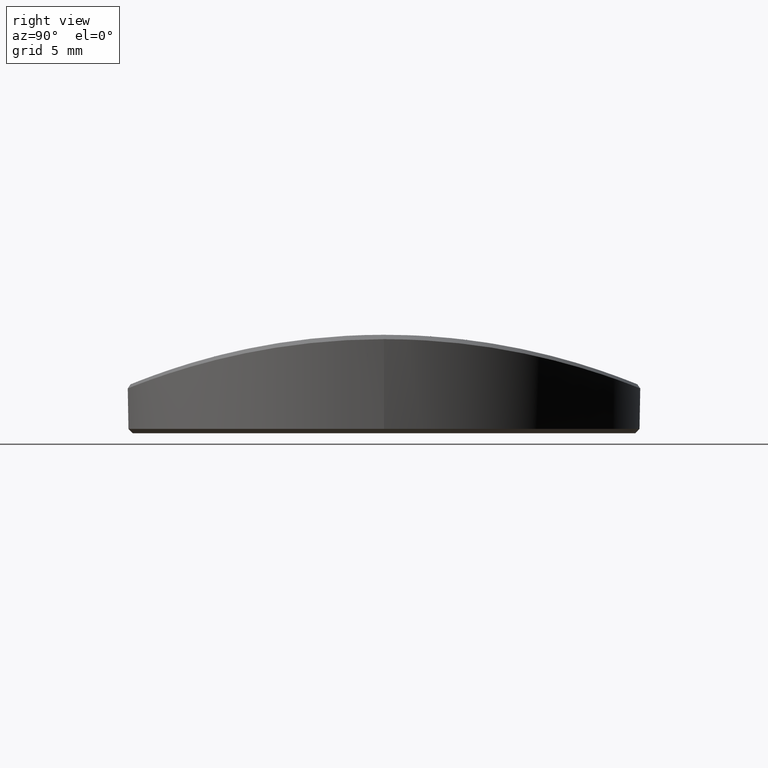
[diagram: clean part render]
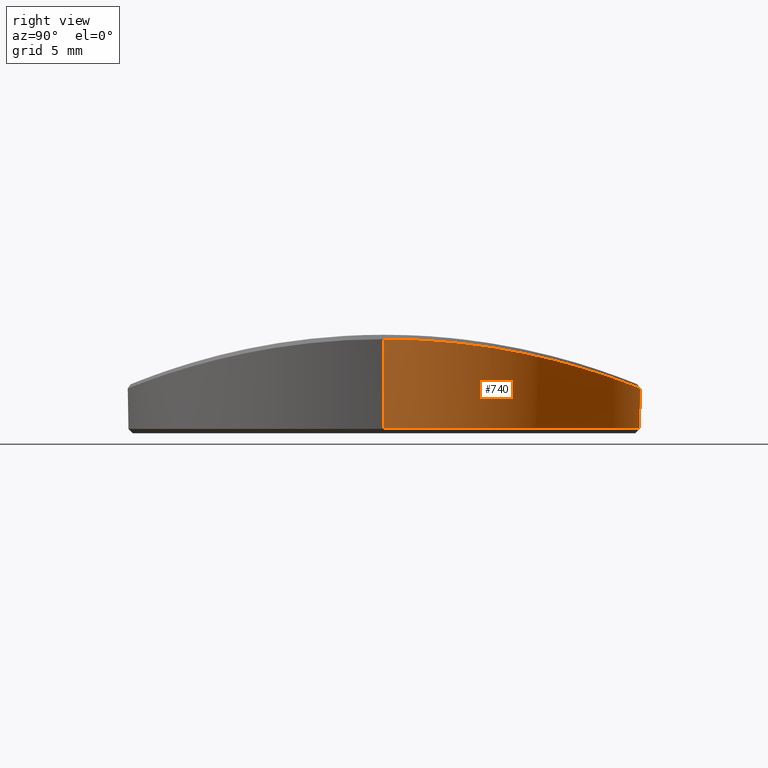
[diagram: same view with one face highlighted and labeled with its STEP entity id]
A machine part, right view. The second image highlights one B-rep face of the part: STEP entity #740.
In plain terms, the highlighted cylindrical surface (partial cylindrical patch) has radius 11.7 mm, axis along (-0, -0, -1).
Its self-contained STEP definition (entity closure, byte-faithful):
#8 = CARTESIAN_POINT ( 'NONE',  ( 7.888290646629014802, 8.640893199863754148, 3.089713225062541202 ) ) ;
#12 = CARTESIAN_POINT ( 'NONE',  ( -10.22789715247414222, 5.681878937188276524, 3.780000658494329535 ) ) ;
#23 = CARTESIAN_POINT ( 'NONE',  ( 8.558692350898153833, 7.977954808214100524, 3.270777279782347780 ) ) ;
#27 = CARTESIAN_POINT ( 'NONE',  ( -8.727299508287467589, 7.793260981205430760, 3.318466740201980958 ) ) ;
#36 = CARTESIAN_POINT ( 'NONE',  ( 8.287067342364345279, 8.259208618905056198, 3.195813196759891284 ) ) ;
#39 = CARTESIAN_POINT ( 'NONE',  ( -8.119463675674817082, 8.424390538232598757, 3.150581575840307735 ) ) ;
#49 = CARTESIAN_POINT ( 'NONE',  ( 9.731128417873589953, 6.495790785072700579, 3.619963922044569848 ) ) ;
#53 = CARTESIAN_POINT ( 'NONE',  ( -8.264760211419986291, 8.281530156905459350, 3.189750435192526101 ) ) ;
#59 = CARTESIAN_POINT ( 'NONE',  ( -11.62194358825001217, 1.352621623432518794, 4.266445778916218678 ) ) ;
#66 = CARTESIAN_POINT ( 'NONE',  ( -4.182335698067338292, 10.92769646260452276, 2.342848137403649389 ) ) ;
#70 = DIRECTION ( 'NONE',  ( 1.000000000000000000, 0.000000000000000000, 0.000000000000000000 ) ) ;
#71 = CARTESIAN_POINT ( 'NONE',  ( -11.59826320194621729, 1.542546181812076478, 4.257731255176000040 ) ) ;
#82 = CARTESIAN_POINT ( 'NONE',  ( -10.78650723820852697, 4.532314236401684404, 3.968408804558945846 ) ) ;
#90 = CARTESIAN_POINT ( 'NONE',  ( -7.289481702509195138, 9.151925025487830823, 2.939526628084299986 ) ) ;
#113 = CARTESIAN_POINT ( 'NONE',  ( -3.399530701162279289, 11.19525467731439861, 2.242537157926287605 ) ) ;
#135 = CARTESIAN_POINT ( 'NONE',  ( 4.046706682864055438, 10.98081936388993185, 2.323265368586188373 ) ) ;
#147 = CARTESIAN_POINT ( 'NONE',  ( 2.351780848111742817, 11.46130526961223417, 2.140069903650192451 ) ) ;
#151 = CARTESIAN_POINT ( 'NONE',  ( 10.92781677955933617, 4.182003673530689802, 4.017426979878241156 ) ) ;
#160 = CARTESIAN_POINT ( 'NONE',  ( -0.7712829572750949936, 11.67494702199874901, 2.055771076492588723 ) ) ;
#162 = CARTESIAN_POINT ( 'NONE',  ( 11.69999999999999929, 0.3837674314343382242, 4.295274424586986051 ) ) ;
#173 = CARTESIAN_POINT ( 'NONE',  ( 3.231731580760927258, 11.24651709920020259, 2.223072521589024575 ) ) ;
#187 = CARTESIAN_POINT ( 'NONE',  ( 9.070950892027010326, 7.389722817263182364, 3.418376554316377103 ) ) ;
#189 = CARTESIAN_POINT ( 'NONE',  ( -9.377146465452256052, 6.997090697776377155, 3.510283679214278418 ) ) ;
#202 = CARTESIAN_POINT ( 'NONE',  ( 7.705201902673864289, 8.805054421272275889, 3.042554764437622072 ) ) ;
#206 = CARTESIAN_POINT ( 'NONE',  ( -9.336864139835633125, 7.050807286892255554, 3.498030426395176917 ) ) ;
#218 = CARTESIAN_POINT ( 'NONE',  ( 8.237463622058125878, 8.308818114982093661, 3.182332959306657827 ) ) ;
#221 = CARTESIAN_POINT ( 'NONE',  ( -9.701161992759407937, 6.540495754203384138, 3.610535273379416488 ) ) ;
#232 = CARTESIAN_POINT ( 'NONE',  ( 8.897363447054106089, 7.598863748479625535, 3.367402907586792615 ) ) ;
#235 = CARTESIAN_POINT ( 'NONE',  ( -8.235820022287461128, 8.310334853639337993, 3.181903113797276195 ) ) ;
#236 = VECTOR ( 'NONE', #2411, 1000.000000000000000 ) ;
#244 = CARTESIAN_POINT ( 'NONE',  ( 9.055285162147521660, 7.408911123352520001, 3.413748980420182821 ) ) ;
#248 = CARTESIAN_POINT ( 'NONE',  ( -9.443859579952111005, 6.907486992467366527, 3.530623421876835977 ) ) ;
#262 = CARTESIAN_POINT ( 'NONE',  ( -5.223822586643953159, 10.46987224570798425, 2.508042035191483166 ) ) ;
#267 = CARTESIAN_POINT ( 'NONE',  ( -11.45211503329184310, 2.396104126714131866, 4.204303442348403586 ) ) ;
#276 = CARTESIAN_POINT ( 'NONE',  ( -6.699788234501516726, 9.592648077453397093, 2.802441508754319521 ) ) ;
#281 = CARTESIAN_POINT ( 'NONE',  ( -10.97822070774722647, 4.053837622278138930, 4.034981919730275202 ) ) ;
#298 = CARTESIAN_POINT ( 'NONE',  ( 9.252037217329810659, 7.162790418133734960, 3.472307408370613135 ) ) ;
#301 = CARTESIAN_POINT ( 'NONE',  ( -5.094378599599732382, 10.53310627816805400, 2.485675871236978640 ) ) ;
#313 = CARTESIAN_POINT ( 'NONE',  ( -6.957467455710446558, 9.406582931082155596, 2.861111615733229474 ) ) ;
#316 = ORIENTED_EDGE ( 'NONE', *, *, #2488, .T. ) ;
#325 = CARTESIAN_POINT ( 'NONE',  ( 4.544383523361996247, 10.78142424203564609, 2.396445635487109538 ) ) ;
#338 = CARTESIAN_POINT ( 'NONE',  ( -0.9632668784840604514, 11.66067675083552224, 2.061455783097421612 ) ) ;
#352 = CARTESIAN_POINT ( 'NONE',  ( 0.7694461830074101893, 11.67627939397484838, 2.055241632753324055 ) ) ;
#364 = CARTESIAN_POINT ( 'NONE',  ( 5.364290747282063343, 10.39973929316928469, 2.532736856190833663 ) ) ;
#366 = CARTESIAN_POINT ( 'NONE',  ( 11.24417432423319596, 3.234332605270536121, 4.129288160338224323 ) ) ;
#386 = CARTESIAN_POINT ( 'NONE',  ( 6.782593683837508713, 9.534255462411291404, 2.821018222263933506 ) ) ;
#389 = CARTESIAN_POINT ( 'NONE',  ( -9.931498048038626791, 6.188013056245800669, 3.683513969638861685 ) ) ;
#401 = CARTESIAN_POINT ( 'NONE',  ( 7.486134403854664221, 8.991583219828571671, 2.987646509165397202 ) ) ;
#403 = CARTESIAN_POINT ( 'NONE',  ( -7.835432036570371572, 8.688846299831704201, 3.076014544982754284 ) ) ;
#405 = CARTESIAN_POINT ( 'NONE',  ( 11.62413761059384498, 1.344020682375672404, 4.267251603589326869 ) ) ;
#415 = CARTESIAN_POINT ( 'NONE',  ( 6.991019029902708404, 9.381674086412560953, 2.868882907920283554 ) ) ;
#419 = CARTESIAN_POINT ( 'NONE',  ( -9.288093968267583378, 7.115129804381266965, 3.483248281273598312 ) ) ;
#428 = CARTESIAN_POINT ( 'NONE',  ( 8.728471444357319697, 7.791334653167223401, 3.318865723925298106 ) ) ;
#430 = CARTESIAN_POINT ( 'NONE',  ( -8.345649881431395301, 8.200780018474791433, 3.211711048682770020 ) ) ;
#440 = CARTESIAN_POINT ( 'NONE',  ( 8.786345493476865443, 7.726215512156376697, 3.335413026244156143 ) ) ;
#442 = CARTESIAN_POINT ( 'NONE',  ( -8.981824676047303058, 7.497845323258884420, 3.392141032453855232 ) ) ;
#458 = CARTESIAN_POINT ( 'NONE',  ( -11.63238196714287476, 1.259829471362655218, 4.270292976724938683 ) ) ;
#471 = CARTESIAN_POINT ( 'NONE',  ( -11.08796515293942164, 3.736694886988290332, 4.073699730601195057 ) ) ;
#477 = CARTESIAN_POINT ( 'NONE',  ( 9.335575194384766462, 7.053015110477391048, 3.497602625824830724 ) ) ;
#480 = CARTESIAN_POINT ( 'NONE',  ( -6.837555101403382629, 9.494316987976700872, 2.833585260152656105 ) ) ;
#485 = EDGE_CURVE ( 'NONE', #702, #562, #1047, .T. ) ;
#492 = VECTOR ( 'NONE', #1225, 1000.000000000000000 ) ;
#494 = CARTESIAN_POINT ( 'NONE',  ( -7.786025549482752162, 8.733213446266795188, 3.063278770526340455 ) ) ;
#506 = CARTESIAN_POINT ( 'NONE',  ( -7.047756127015710526, 9.339527444700770786, 2.882029272980853207 ) ) ;
#551 = VERTEX_POINT ( 'NONE', #1820 ) ;
#559 = CARTESIAN_POINT ( 'NONE',  ( 2.488376748805919192, 11.43241927790962720, 2.151331667034600326 ) ) ;
#562 = VERTEX_POINT ( 'NONE', #1835 ) ;
#572 = CARTESIAN_POINT ( 'NONE',  ( 7.782345387564510553, 8.737117156087478520, 3.062241971016135267 ) ) ;
#586 = CARTESIAN_POINT ( 'NONE',  ( 8.117485607408990944, 8.425967219062304281, 3.150097490152650170 ) ) ;
#588 = EDGE_CURVE ( 'NONE', #551, #702, #1420, .T. ) ;
#590 = CARTESIAN_POINT ( 'NONE',  ( -7.992885011478165325, 8.544296991056096857, 3.117063662435846982 ) ) ;
#591 = CARTESIAN_POINT ( 'NONE',  ( 11.48031664042088273, 2.257114473503484486, 4.214568905575816871 ) ) ;
#601 = CARTESIAN_POINT ( 'NONE',  ( 7.016352649934343155, 9.362740932705044372, 2.874774659814939959 ) ) ;
#604 = CARTESIAN_POINT ( 'NONE',  ( -9.663488172272414189, 6.596023912201297357, 3.598721271261297705 ) ) ;
#611 = CARTESIAN_POINT ( 'NONE',  ( 10.33222518791430922, 5.489602043491360384, 3.814526166179541100 ) ) ;
#616 = CARTESIAN_POINT ( 'NONE',  ( 7.351012865045847278, 9.102919007720883471, 2.954385077532136084 ) ) ;
#618 = CARTESIAN_POINT ( 'NONE',  ( -8.561750288657137276, 7.974307789433776605, 3.271678078437108894 ) ) ;
#625 = CARTESIAN_POINT ( 'NONE',  ( 10.86562974075178545, 4.339610491343868226, 3.995796746064399940 ) ) ;
#630 = CARTESIAN_POINT ( 'NONE',  ( 8.186558997960322159, 8.358876606402397158, 3.168609153702558245 ) ) ;
#633 = CARTESIAN_POINT ( 'NONE',  ( -8.057853015136414498, 8.482983999992354640, 3.134235365373405191 ) ) ;
#638 = LINE ( 'NONE', #2384, #492 ) ;
#645 = CARTESIAN_POINT ( 'NONE',  ( -7.882561239677256637, 8.646188231982481653, 3.088213469282461876 ) ) ;
#657 = CARTESIAN_POINT ( 'NONE',  ( 9.395564998295457215, 6.972336993408942085, 3.515900340936506829 ) ) ;
#660 = CARTESIAN_POINT ( 'NONE',  ( -6.500303723576315917, 9.728112830390799104, 2.758753685410222811 ) ) ;
#674 = CARTESIAN_POINT ( 'NONE',  ( -6.584825209059849804, 9.671517579863003533, 2.777092555255673112 ) ) ;
#684 = CARTESIAN_POINT ( 'NONE',  ( 9.723465072304399825, 6.507254146982383247, 3.617550946736648232 ) ) ;
#687 = CARTESIAN_POINT ( 'NONE',  ( -6.467377055756238668, 9.750035657898179053, 2.751636516903076313 ) ) ;
#702 = VERTEX_POINT ( 'NONE', #1078 ) ;
#705 = DIRECTION ( 'NONE',  ( -0.000000000000000000, -0.000000000000000000, -1.000000000000000000 ) ) ;
#709 = CARTESIAN_POINT ( 'NONE',  ( 0.3823702731432714330, 11.69535552640118148, 2.047624797793404561 ) ) ;
#719 = CARTESIAN_POINT ( 'NONE',  ( 5.189100074375526894, 10.48809000226845534, 2.501690443500789840 ) ) ;
#739 = CARTESIAN_POINT ( 'NONE',  ( -0.4832994759773461824, 11.69277972538598398, 2.048658400212035158 ) ) ;
#740 = ADVANCED_FACE ( 'NONE', ( #2248 ), #2027, .T. ) ;
#742 = CARTESIAN_POINT ( 'NONE',  ( 11.58851933058215877, 1.631622620038725158, 4.254129218143469338 ) ) ;
#752 = CARTESIAN_POINT ( 'NONE',  ( 5.579892289424539520, 10.28372136769711531, 2.572847410964628878 ) ) ;
#763 = CARTESIAN_POINT ( 'NONE',  ( 5.937503340781243644, 10.08191776697556818, 2.641763308603989557 ) ) ;
#778 = CARTESIAN_POINT ( 'NONE',  ( 8.294429351776116732, 8.251819560152233279, 3.197816829312889908 ) ) ;
#781 = CARTESIAN_POINT ( 'NONE',  ( -8.634869084628061131, 7.894884757748693360, 3.292286630032081884 ) ) ;
#792 = CARTESIAN_POINT ( 'NONE',  ( 5.816617050002602873, 10.15241776418823605, 2.617899153032184678 ) ) ;
#796 = CARTESIAN_POINT ( 'NONE',  ( -10.28233688822979808, 5.582443479208843762, 3.797985230074126584 ) ) ;
#806 = CARTESIAN_POINT ( 'NONE',  ( 8.672320163145117888, 7.853717998962112645, 3.302893497662578781 ) ) ;
#809 = CARTESIAN_POINT ( 'NONE',  ( -9.095020847111431550, 7.360760516400455700, 3.425440865034901972 ) ) ;
#816 = CARTESIAN_POINT ( 'NONE',  ( 10.81978912014045946, 4.452275399906049813, 3.979911227753946790 ) ) ;
#820 = CARTESIAN_POINT ( 'NONE',  ( 8.311459118258182954, 8.234681446766465740, 3.202457203369714289 ) ) ;
#822 = CARTESIAN_POINT ( 'NONE',  ( -8.059597575289441096, 8.481327168717816889, 3.134697907842443954 ) ) ;
#832 = CARTESIAN_POINT ( 'NONE',  ( 10.22337831683760534, 5.692561001804513410, 3.778423078523266199 ) ) ;
#836 = CARTESIAN_POINT ( 'NONE',  ( -8.027198369518551146, 8.512016289777241340, 3.126118925080149324 ) ) ;
#848 = CARTESIAN_POINT ( 'NONE',  ( -6.435677687976785855, 9.771037510618999278, 2.744807184570351222 ) ) ;
#851 = AXIS2_PLACEMENT_3D ( 'NONE', #1269, #705, #909 ) ;
#854 = CARTESIAN_POINT ( 'NONE',  ( -11.55916624259112346, 1.827649423247464266, 4.243361112733620821 ) ) ;
#869 = CARTESIAN_POINT ( 'NONE',  ( -10.76016656102558500, 4.594491173794096106, 3.959326751692843427 ) ) ;
#874 = CARTESIAN_POINT ( 'NONE',  ( 9.148018884825201980, 7.294374143616679795, 3.441224359389729148 ) ) ;
#878 = CARTESIAN_POINT ( 'NONE',  ( -7.357316604374801727, 9.097307248231011556, 2.956007571332038619 ) ) ;
#886 = CARTESIAN_POINT ( 'NONE',  ( 9.907608800580051778, 6.224650174724928320, 3.675929073634226274 ) ) ;
#889 = CARTESIAN_POINT ( 'NONE',  ( -4.408732202248322629, 10.83760494235667515, 2.375940137836157096 ) ) ;
#901 = CARTESIAN_POINT ( 'NONE',  ( -3.374532102881677709, 11.20281831666507699, 2.239662521693415176 ) ) ;
#909 = DIRECTION ( 'NONE',  ( -1.000000000000000000, 0.000000000000000000, 0.000000000000000000 ) ) ;
#914 = CARTESIAN_POINT ( 'NONE',  ( 4.586788474389987158, 10.76345213141959967, 2.402980588930803130 ) ) ;
#924 = CARTESIAN_POINT ( 'NONE',  ( 1.537914669028665804, 11.59888197293524925, 2.085995682718381428 ) ) ;
#937 = AXIS2_PLACEMENT_3D ( 'NONE', #1834, #1454, #70 ) ;
#939 = CARTESIAN_POINT ( 'NONE',  ( 4.524887916371143959, 10.78962468826590815, 2.393460013607228820 ) ) ;
#941 = CARTESIAN_POINT ( 'NONE',  ( 11.13426867111492946, 3.598986799721983321, 4.090085178319680992 ) ) ;
#962 = CARTESIAN_POINT ( 'NONE',  ( 11.20229783282766789, 3.376490569540501419, 4.114327198330813395 ) ) ;
#972 = CARTESIAN_POINT ( 'NONE',  ( 9.094326961138229137, 7.360997140539494055, 3.425289844411543161 ) ) ;
#975 = CARTESIAN_POINT ( 'NONE',  ( -9.016965979542716170, 7.455497622398087998, 3.402460308560034008 ) ) ;
#982 = CARTESIAN_POINT ( 'NONE',  ( 10.35527056077423325, 5.446005833896792048, 3.822191088181160268 ) ) ;
#987 = CARTESIAN_POINT ( 'NONE',  ( 7.877672841068599219, 8.650566032350914369, 3.086955717179424852 ) ) ;
#990 = CARTESIAN_POINT ( 'NONE',  ( -8.651314722244887179, 7.876850715812970805, 3.296939866504068117 ) ) ;
#1000 = CARTESIAN_POINT ( 'NONE',  ( 8.344928143751509708, 8.200820132911635696, 3.211598877215992243 ) ) ;
#1004 = CARTESIAN_POINT ( 'NONE',  ( -10.39742838591952179, 5.368667229132905838, 3.836130496686570801 ) ) ;
#1013 = CARTESIAN_POINT ( 'NONE',  ( 8.078578338067089248, 8.463251541685835377, 3.139737309116536590 ) ) ;
#1016 = CARTESIAN_POINT ( 'NONE',  ( -8.214727845210614277, 8.331194587206317337, 3.176200836085775858 ) ) ;
#1024 = CARTESIAN_POINT ( 'NONE',  ( 8.677592169877867079, 7.847893656447949340, 3.304389701779191224 ) ) ;
#1027 = CARTESIAN_POINT ( 'NONE',  ( -9.187257361966505442, 7.245699713511440265, 3.452871345410047699 ) ) ;
#1038 = CARTESIAN_POINT ( 'NONE',  ( 9.587437384763310533, 6.707224857515496019, 3.574922668014618665 ) ) ;
#1047 = LINE ( 'NONE', #1224, #236 ) ;
#1061 = CARTESIAN_POINT ( 'NONE',  ( -11.43229362724746778, 2.488958847028710064, 4.197100769159336942 ) ) ;
#1067 = CARTESIAN_POINT ( 'NONE',  ( 9.418122947786784493, 6.941837694292556371, 3.522792475213720742 ) ) ;
#1078 = CARTESIAN_POINT ( 'NONE',  ( 11.70000000000246310, 8.453462766638964437E-14, 4.295275040493859997 ) ) ;
#1079 = CARTESIAN_POINT ( 'NONE',  ( 9.813919465418949883, 6.370348209154132135, 3.646122160694682091 ) ) ;
#1083 = CARTESIAN_POINT ( 'NONE',  ( -4.836866990563454927, 10.65508340880395899, 2.442253526191352719 ) ) ;
#1093 = CARTESIAN_POINT ( 'NONE',  ( -4.340730204948978432, 10.86518469969954381, 2.365839735869393667 ) ) ;
#1115 = CARTESIAN_POINT ( 'NONE',  ( 2.627076446689397660, 11.40193892070913684, 2.163192953730781021 ) ) ;
#1128 = CARTESIAN_POINT ( 'NONE',  ( -1.629560647813907304, 11.58876480204659387, 2.090027933597502940 ) ) ;
#1140 = CARTESIAN_POINT ( 'NONE',  ( 5.551900518519165217, 10.29886195823405970, 2.567619401073086394 ) ) ;
#1141 = EDGE_LOOP ( 'NONE', ( #2321, #1608, #316, #2550 ) ) ;
#1152 = CARTESIAN_POINT ( 'NONE',  ( -3.256705444130330029, 11.23779729513646508, 2.226345415686146190 ) ) ;
#1161 = CARTESIAN_POINT ( 'NONE',  ( 10.61594687361659872, 4.925037449684218416, 3.909770724750731397 ) ) ;
#1167 = CARTESIAN_POINT ( 'NONE',  ( 7.446055910751425699, 9.024759139873825831, 2.977754862033024086 ) ) ;
#1170 = CARTESIAN_POINT ( 'NONE',  ( -7.845414895411231271, 8.679833543373510096, 3.078595072856778359 ) ) ;
#1181 = CARTESIAN_POINT ( 'NONE',  ( 7.457954986541329490, 9.014937272360819875, 2.980686922608707157 ) ) ;
#1184 = CARTESIAN_POINT ( 'NONE',  ( -8.265176454172772580, 8.281114567700441853, 3.189863446815755399 ) ) ;
#1195 = CARTESIAN_POINT ( 'NONE',  ( 7.870723268288233321, 8.656889586046448315, 3.085151981541256916 ) ) ;
#1198 = CARTESIAN_POINT ( 'NONE',  ( -10.29789035968787125, 5.553702088985064123, 3.803135132399837914 ) ) ;
#1207 = CARTESIAN_POINT ( 'NONE',  ( 7.106068648704995105, 9.295020809795433436, 2.895766016050675074 ) ) ;
#1208 = CARTESIAN_POINT ( 'NONE',  ( -9.022784491461093737, 7.448457517448177079, 3.404171451364632617 ) ) ;
#1216 = CARTESIAN_POINT ( 'NONE',  ( 6.526934525640118778, 9.710267075187799080, 2.764534772386619821 ) ) ;
#1219 = CARTESIAN_POINT ( 'NONE',  ( -10.14932440777193712, 5.822037067565466906, 3.754167907332774057 ) ) ;
#1224 = CARTESIAN_POINT ( 'NONE',  ( 11.69999999999999929, 1.432836755002403087E-15, 7.000000000000000000 ) ) ;
#1225 = DIRECTION ( 'NONE',  ( -0.000000000000000000, -0.000000000000000000, -1.000000000000000000 ) ) ;
#1236 = CARTESIAN_POINT ( 'NONE',  ( -11.50922868342457051, 2.113125821748798039, 4.225095899795110022 ) ) ;
#1243 = CARTESIAN_POINT ( 'NONE',  ( -6.937378708671489314, 9.421408200957413825, 2.856475606924349542 ) ) ;
#1249 = CARTESIAN_POINT ( 'NONE',  ( -11.17442337136596642, 3.467657068555176192, 4.104394302570731234 ) ) ;
#1255 = CARTESIAN_POINT ( 'NONE',  ( 9.403547977733474283, 6.961568491654293922, 3.518337605339639129 ) ) ;
#1258 = CARTESIAN_POINT ( 'NONE',  ( -5.375886280529923233, 10.39201940787512690, 2.535282128143858671 ) ) ;
#1269 = CARTESIAN_POINT ( 'NONE',  ( 0.000000000000000000, 0.000000000000000000, 7.000000000000000000 ) ) ;
#1272 = CARTESIAN_POINT ( 'NONE',  ( -5.685148787027410222, 10.22744592554330190, 2.592334736085621927 ) ) ;
#1282 = CARTESIAN_POINT ( 'NONE',  ( -5.506731545934306027, 10.32308387187384469, 2.559238010885691139 ) ) ;
#1301 = CARTESIAN_POINT ( 'NONE',  ( 1.347084599039075625, 11.62259040121123732, 2.076597458200188040 ) ) ;
#1312 = CARTESIAN_POINT ( 'NONE',  ( -3.091916923348374091, 11.28480265676585859, 2.208385678395416107 ) ) ;
#1322 = CARTESIAN_POINT ( 'NONE',  ( 4.650503397936870620, 10.73622688365983713, 2.412866654305128034 ) ) ;
#1334 = CARTESIAN_POINT ( 'NONE',  ( 0.1874078887678114758, 11.70006600274061626, 2.045734530615458180 ) ) ;
#1343 = CARTESIAN_POINT ( 'NONE',  ( 10.46759620037999206, 5.228388959122686863, 3.859718141166181837 ) ) ;
#1350 = CARTESIAN_POINT ( 'NONE',  ( 8.278376992674498780, 8.267918493938578806, 3.193449559078681332 ) ) ;
#1365 = CARTESIAN_POINT ( 'NONE',  ( 8.460944477674143371, 8.081130054981334965, 3.243566890539766323 ) ) ;
#1367 = CARTESIAN_POINT ( 'NONE',  ( -10.73282786100292441, 4.658344240524481705, 3.949913495053368973 ) ) ;
#1368 = CARTESIAN_POINT ( 'NONE',  ( 11.04524853589422762, 3.867348809727248149, 4.058536299903130917 ) ) ;
#1378 = CARTESIAN_POINT ( 'NONE',  ( 7.435211903603990535, 9.033696090761337061, 2.975085173248879666 ) ) ;
#1381 = CARTESIAN_POINT ( 'NONE',  ( -8.653465949759025833, 7.874488475414853639, 3.297548884017059923 ) ) ;
#1388 = CARTESIAN_POINT ( 'NONE',  ( 10.73025274759930170, 4.667510786904911058, 3.948968158241360715 ) ) ;
#1394 = CARTESIAN_POINT ( 'NONE',  ( 8.686146456544696193, 7.838424615003810381, 3.306819359449450157 ) ) ;
#1398 = CARTESIAN_POINT ( 'NONE',  ( -8.264398504722093364, 8.281890946948026411, 3.189652264577813146 ) ) ;
#1410 = CARTESIAN_POINT ( 'NONE',  ( 6.181719891725502514, 9.935410726669999804, 2.690931119082611733 ) ) ;
#1413 = CARTESIAN_POINT ( 'NONE',  ( -8.052672125621386456, 8.487902237591429255, 3.132862029098794299 ) ) ;
#1416 = CARTESIAN_POINT ( 'NONE',  ( -11.16087035001376115, 3.511013306036624204, 4.099572114971202552 ) ) ;
#1420 = B_SPLINE_CURVE_WITH_KNOTS ( 'NONE', 3,
 ( #1430, #2219, #1654, #458, #59, #71, #854, #1236, #2022, #267, #1061, #1455, #1847, #1642, #1249, #1416, #2037, #471, #281, #2424, #82, #2244, #869, #1367, #2200, #1997, #1004, #1198, #2549, #796, #1775, #12, #1219, #1580, #389, #1787, #221, #2366, #604, #1968, #1607, #248, #189, #1982, #1801, #206, #419, #1027, #809, #1208, #975, #1759, #442, #2158, #2008, #27, #1381, #990, #2172, #781, #1595, #618, #2378, #1565, #430, #53, #1184, #1398, #2187, #2405, #2351, #235, #1016, #2393, #39, #822, #633, #1413, #1814, #836, #590, #1621, #645, #2141, #1170, #403, #1950, #494, #1650, #2253, #1675, #2458, #1856, #2032, #1424, #2469, #878, #90, #2419, #506, #1662, #313, #1243, #2433, #480, #276, #674, #660, #1449, #687, #848, #1463, #1474, #1842, #2264, #1272, #2225, #1282, #2057, #2239, #1258, #262, #301, #1083, #2214, #1829, #1867, #889, #1093, #66, #1636, #1877, #113, #901, #1686, #1152, #1312, #1921, #2503, #1521, #2077, #1889, #2290, #1128, #1509, #2100, #338, #160, #739, #1742, #1334, #709, #352, #1727, #2124, #1301, #924, #1908, #2089, #147, #1697, #559, #1115, #1933, #173, #1705, #2309, #1898, #2516, #1486, #135, #2277, #939, #325, #914, #1322, #2113, #2481, #719, #364, #1140, #1498, #752, #1534, #2318, #792, #763, #1410, #2375, #1216, #1756, #2532, #1546, #2333, #386, #1563, #415, #1772, #601, #2155, #1207, #2546, #616, #1378, #1577, #1167, #1181, #401, #1964, #1604, #202, #572, #2169, #1195, #987, #8, #2348, #1994, #2390, #1013, #2363, #2185, #586, #1979, #630, #218, #1590, #1350, #2138, #36, #778, #820, #1000, #1785, #1365, #23, #1947, #806, #1024, #1394, #2197, #428, #440, #232, #1797, #2004, #244, #187, #972, #874, #298, #477, #657, #1255, #1067, #2442, #1811, #1038, #1825, #684, #49, #2028, #2249, #1079, #886, #1671, #2455, #832, #2401, #611, #982, #1739, #1343, #1161, #1388, #2179, #816, #2385, #625, #151, #1368, #941, #962, #1566, #366, #2352, #2127, #2506, #591, #1936, #2115, #2520, #742, #405, #1732, #162, #2159 ),
 .UNSPECIFIED., .F., .F.,
 ( 4, 2, 2, 1, 2, 2, 1, 1, 2, 2, 1, 1, 2, 2, 1, 1, 1, 2, 2, 1, 1, 1, 2, 2, 2, 1, 1, 2, 2, 1, 1, 1, 2, 2, 1, 1, 1, 2, 2, 1, 1, 1, 2, 2, 2, 1, 1, 1, 1, 2, 2, 2, 1, 1, 1, 1, 2, 2, 1, 1, 1, 2, 2, 2, 1, 1, 1, 1, 2, 2, 1, 1, 1, 2, 2, 1, 1, 1, 2, 2, 2, 1, 1, 1, 2, 2, 2, 1, 1, 1, 2, 2, 1, 1, 1, 2, 2, 1, 1, 2, 2, 1, 2, 2, 2, 2, 1, 2, 2, 1, 1, 2, 2, 1, 1, 1, 2, 2, 1, 1, 2, 2, 2, 1, 1, 1, 2, 2, 2, 1, 1, 1, 2, 2, 1, 1, 1, 2, 2, 1, 1, 1, 2, 2, 2, 1, 1, 1, 2, 2, 1, 1, 2, 2, 2, 1, 1, 1, 1, 2, 2, 2, 1, 1, 1, 1, 2, 2, 1, 1, 1, 2, 2, 1, 1, 1, 2, 2, 1, 1, 1, 2, 2, 2, 1, 1, 1, 2, 2, 1, 1, 1, 2, 2, 1, 1, 2, 2, 1, 1, 2, 4 ),
 ( 0.000000000000000000, 0.01562476195956391360, 0.01953095244945489764, 0.02343714293934588341, 0.03124952391912787578, 0.03320261916407337560, 0.03515571440901885808, 0.03906190489890984385, 0.04687428587869183622, 0.04882738112363733951, 0.05078047636858284281, 0.05468666685847386327, 0.06249904783825590421, 0.06347559546072865932, 0.06445214308320142138, 0.06640523832814695937, 0.07031142881803802147, 0.07812380979782020118, 0.07861208360905660997, 0.07910035742029300487, 0.08007690504276579468, 0.08203000028771138818, 0.08593619077760261682, 0.09374857175738512960, 0.09472511937985796104, 0.09570166700233079249, 0.09765476224727645538, 0.1015609527371678228, 0.1020492265484042455, 0.1025375003596406820, 0.1035140479821135551, 0.1054671432270593567, 0.1093733337169510017, 0.1098616075281875076, 0.1103498813394239858, 0.1113264289618969838, 0.1132795242068429659, 0.1171857146967349578, 0.1174298516023531552, 0.1176739885079713527, 0.1181622623192077198, 0.1191388099416804264, 0.1210919051866259089, 0.1249980956765168044, 0.1250591299029213121, 0.1251201641293258338, 0.1252422325821348770, 0.1254863694877531022, 0.1259746432989894138, 0.1269511909214620926, 0.1289042861664075057, 0.1290263546192166044, 0.1291484230720257032, 0.1293925599776439561, 0.1298808337888805176, 0.1308573814113535017, 0.1328104766562996086, 0.1330546135619178338, 0.1332987504675360868, 0.1337870242787725095, 0.1347635719012454658, 0.1367166671461913230, 0.1406228576360830651, 0.1408669945417012903, 0.1411111314473194878, 0.1415994052585559104, 0.1425759528810287835, 0.1445290481259745852, 0.1484352386158662440, 0.1489235124271026667, 0.1494117862383391171, 0.1503883338608119902, 0.1523414291057577363, 0.1562476195956491731, 0.1567358934068856235, 0.1572241672181220462, 0.1582007148405948915, 0.1601538100855406654, 0.1640600005754322410, 0.1718723815552153367, 0.1723606553664517316, 0.1728489291776881265, 0.1738254768001609718, 0.1757785720451065792, 0.1796847625349978494, 0.1874971435147803900, 0.1884736911372532631, 0.1894502387597261084, 0.1914033340046718545, 0.1953095244945633469, 0.2031219054743463037, 0.2040984530968191490, 0.2050750007192920221, 0.2070280959642376850, 0.2109342864541290663, 0.2187466674339118011, 0.2206997626788574640, 0.2226528579238031824, 0.2265590484136945637, 0.2343714293934773263, 0.2382776198833686798, 0.2421838103732600611, 0.2499961913530428237, 0.2578085723328256140, 0.2656209533126084321, 0.2695271438024997579, 0.2734333342923911392, 0.2812457152721739018, 0.2831988105171195924, 0.2851519057620652275, 0.2890580962519566088, 0.2968704772317393159, 0.2978470248542121612, 0.2988235724766850621, 0.3007766677216307527, 0.3046828582115221895, 0.3124952391913050076, 0.3134717868137779084, 0.3144483344362507538, 0.3164014296811964444, 0.3203076201710879367, 0.3281200011508709768, 0.3286082749621073718, 0.3290965487733438222, 0.3300730963958166120, 0.3320261916407623026, 0.3359323821306535729, 0.3437447631104361134, 0.3442330369216725083, 0.3447213107329089588, 0.3456978583553817486, 0.3476509536003274392, 0.3515571440902187095, 0.3520454179014551599, 0.3525336917126916103, 0.3535102393351644556, 0.3554633345801102018, 0.3593695250700015831, 0.3596136619756197805, 0.3598577988812379780, 0.3603460726924743174, 0.3613226203149472182, 0.3632757155598929644, 0.3671819060497845677, 0.3674260429554027096, 0.3676701798610209071, 0.3681584536722573575, 0.3691350012947302583, 0.3710880965396760600, 0.3713322334452943130, 0.3715763703509125104, 0.3720646441621489608, 0.3730411917846219727, 0.3749942870295678854, 0.3751163554823769841, 0.3752384239351860828, 0.3754825608408042248, 0.3759708346520405087, 0.3769473822745129654, 0.3789004775194578234, 0.3828066680093475949, 0.3830508049149657368, 0.3832949418205838787, 0.3837832156318201626, 0.3847597632542927859, 0.3867128584992378104, 0.3906190489891280815, 0.3911073228003644209, 0.3915955966116007603, 0.3925721442340732725, 0.3945252394790184636, 0.3984314299689087902, 0.3989197037801450740, 0.3994079775913812469, 0.4003845252138538147, 0.4023376204587988947, 0.4062438109486891658, 0.4067320847599253941, 0.4072203585711616780, 0.4081969061936341903, 0.4101500014385792148, 0.4140561919284692638, 0.4218685729082494174, 0.4228451205307219296, 0.4238216681531944974, 0.4257747633981394664, 0.4296809538880294599, 0.4374933348678093914, 0.4384698824902818481, 0.4394464301127543604, 0.4413995253576992739, 0.4453057158475893229, 0.4531180968273692544, 0.4550711920723142234, 0.4570242873172592479, 0.4609304778071492414, 0.4687428587869292285, 0.4706959540318741975, 0.4726490492768192220, 0.4765552397667091600, 0.4843676207464892025, 0.4999923827060492321 ),
 .UNSPECIFIED. ) ;
#1424 = CARTESIAN_POINT ( 'NONE',  ( -7.406330932246119048, 9.057389395059779247, 2.967993434327031999 ) ) ;
#1430 = CARTESIAN_POINT ( 'NONE',  ( -11.70000000000000107, 1.358640847395897744E-15, 4.295275040937299060 ) ) ;
#1449 = CARTESIAN_POINT ( 'NONE',  ( -6.488529950371995092, 9.735971466409184316, 2.756204510327770141 ) ) ;
#1454 = DIRECTION ( 'NONE',  ( -0.000000000000000000, -0.000000000000000000, 1.000000000000000000 ) ) ;
#1455 = CARTESIAN_POINT ( 'NONE',  ( -11.40165364904247092, 2.628341798400268381, 4.185978528355175143 ) ) ;
#1463 = CARTESIAN_POINT ( 'NONE',  ( -6.361926399798802478, 9.819384410197228519, 2.729030680424212818 ) ) ;
#1474 = CARTESIAN_POINT ( 'NONE',  ( -6.215311623218756409, 9.913477510555445349, 2.698112090652802220 ) ) ;
#1486 = CARTESIAN_POINT ( 'NONE',  ( 3.731542135786707792, 11.08968876213938870, 2.282463255418412551 ) ) ;
#1498 = CARTESIAN_POINT ( 'NONE',  ( 5.560375901929067943, 10.29428690873030305, 2.569199936966935383 ) ) ;
#1509 = CARTESIAN_POINT ( 'NONE',  ( -1.344581331138693381, 11.62404041562084878, 2.076024949126794361 ) ) ;
#1521 = CARTESIAN_POINT ( 'NONE',  ( -2.250334470292728373, 11.48164802623850633, 2.132120400349485134 ) ) ;
#1534 = CARTESIAN_POINT ( 'NONE',  ( 5.609212029787946641, 10.26779475606049274, 2.578341114138275270 ) ) ;
#1546 = CARTESIAN_POINT ( 'NONE',  ( 6.582010972015210903, 9.673057233354176887, 2.776555221988197264 ) ) ;
#1563 = CARTESIAN_POINT ( 'NONE',  ( 6.900886448241053017, 9.448689517419735395, 2.847987080347959665 ) ) ;
#1565 = CARTESIAN_POINT ( 'NONE',  ( -8.417802077099530322, 8.126472518016282010, 3.231579434935846429 ) ) ;
#1566 = CARTESIAN_POINT ( 'NONE',  ( 11.21690712865343720, 3.327665563488126033, 4.119541187770512813 ) ) ;
#1577 = CARTESIAN_POINT ( 'NONE',  ( 7.438162858805464239, 9.031265661282441570, 2.975811403733055194 ) ) ;
#1580 = CARTESIAN_POINT ( 'NONE',  ( -10.07838109552009875, 5.943506899052020565, 3.731050119206955173 ) ) ;
#1590 = CARTESIAN_POINT ( 'NONE',  ( 8.262012160522086646, 8.284300212113455686, 3.189001000503969063 ) ) ;
#1595 = CARTESIAN_POINT ( 'NONE',  ( -8.611227996183078659, 7.920698595053378810, 3.285608997232431161 ) ) ;
#1604 = CARTESIAN_POINT ( 'NONE',  ( 7.596636788669862028, 8.898504898670418939, 3.015183714663118852 ) ) ;
#1607 = CARTESIAN_POINT ( 'NONE',  ( -9.529556784292717353, 6.789211215570089664, 3.556981352028580456 ) ) ;
#1608 = ORIENTED_EDGE ( 'NONE', *, *, #485, .T. ) ;
#1621 = CARTESIAN_POINT ( 'NONE',  ( -7.929007411714159126, 8.603768621319110466, 3.100292556214366613 ) ) ;
#1636 = CARTESIAN_POINT ( 'NONE',  ( -3.866779584933361935, 11.04545812223803125, 2.299168964965628614 ) ) ;
#1637 = CIRCLE ( 'NONE', #937, 11.69999999999999929 ) ;
#1642 = CARTESIAN_POINT ( 'NONE',  ( -11.24579349454203658, 3.234232570519013361, 4.129826376023137513 ) ) ;
#1650 = CARTESIAN_POINT ( 'NONE',  ( -7.718458717449084183, 8.793175919237059546, 3.045968658889418812 ) ) ;
#1654 = CARTESIAN_POINT ( 'NONE',  ( -11.68077234829941702, 0.7754003933446691477, 4.288137892875268697 ) ) ;
#1662 = CARTESIAN_POINT ( 'NONE',  ( -6.968827250130698481, 9.398168232275452283, 2.863739198833669786 ) ) ;
#1671 = CARTESIAN_POINT ( 'NONE',  ( 9.983974516166632895, 6.100771293800975492, 3.700491769830324351 ) ) ;
#1675 = CARTESIAN_POINT ( 'NONE',  ( -7.555463347145694897, 8.933863123181998489, 3.004815772482326341 ) ) ;
#1686 = CARTESIAN_POINT ( 'NONE',  ( -3.327393593760436641, 11.21690942380242184, 2.234301181250870627 ) ) ;
#1697 = CARTESIAN_POINT ( 'NONE',  ( 2.396024062705008006, 11.45213072230911067, 2.143650293472918911 ) ) ;
#1705 = CARTESIAN_POINT ( 'NONE',  ( 3.442113397634544381, 11.18223827296376172, 2.247479365529636564 ) ) ;
#1727 = CARTESIAN_POINT ( 'NONE',  ( 0.9631134428186770569, 11.66191428863570856, 2.060967963634653177 ) ) ;
#1729 = EDGE_CURVE ( 'NONE', #551, #2142, #638, .T. ) ;
#1732 = CARTESIAN_POINT ( 'NONE',  ( 11.68096441316757250, 0.7700243613136674714, 4.288211014079373662 ) ) ;
#1739 = CARTESIAN_POINT ( 'NONE',  ( 10.38955648687769440, 5.380644919667373571, 3.833611288245872828 ) ) ;
#1742 = CARTESIAN_POINT ( 'NONE',  ( -0.1955604170154211507, 11.69993257709445089, 2.045788874811565794 ) ) ;
#1756 = CARTESIAN_POINT ( 'NONE',  ( 6.535101445069974702, 9.704770827769918284, 2.766312679578120992 ) ) ;
#1759 = CARTESIAN_POINT ( 'NONE',  ( -9.002973393228259624, 7.472388530760309955, 3.398348805016983665 ) ) ;
#1772 = CARTESIAN_POINT ( 'NONE',  ( 6.998642017317028063, 9.375986998425061003, 2.870653870072632063 ) ) ;
#1775 = CARTESIAN_POINT ( 'NONE',  ( -10.26615723660585466, 5.612210855277112387, 3.792632533662134264 ) ) ;
#1785 = CARTESIAN_POINT ( 'NONE',  ( 8.409524063837000796, 8.134779270078036362, 3.229325927839077792 ) ) ;
#1787 = CARTESIAN_POINT ( 'NONE',  ( -9.826912986152706253, 6.353110991896868676, 3.650089105504855436 ) ) ;
#1797 = CARTESIAN_POINT ( 'NONE',  ( 8.984646874588699816, 7.494904596687366194, 3.392928994517484753 ) ) ;
#1801 = CARTESIAN_POINT ( 'NONE',  ( -9.357417267218464119, 7.023451517278348710, 3.504278562273668296 ) ) ;
#1811 = CARTESIAN_POINT ( 'NONE',  ( 9.489978505880662496, 6.843567111298658467, 3.544826031506179476 ) ) ;
#1814 = CARTESIAN_POINT ( 'NONE',  ( -8.044942390013851252, 8.495233338350082875, 3.130813983785690535 ) ) ;
#1820 = CARTESIAN_POINT ( 'NONE',  ( -11.70000000000000107, 1.358640847395897744E-15, 4.295275040937299060 ) ) ;
#1825 = CARTESIAN_POINT ( 'NONE',  ( 9.666409716675525843, 6.592329945998900875, 3.599601262337126517 ) ) ;
#1829 = CARTESIAN_POINT ( 'NONE',  ( -4.478527357876484594, 10.80894571795839632, 2.386415129784694500 ) ) ;
#1834 = CARTESIAN_POINT ( 'NONE',  ( 0.000000000000000000, 0.000000000000000000, 0.2000000000000040079 ) ) ;
#1835 = CARTESIAN_POINT ( 'NONE',  ( 11.69999999999999929, 1.432836755002403087E-15, 0.2000000000000040079 ) ) ;
#1842 = CARTESIAN_POINT ( 'NONE',  ( -6.091272398260007215, 9.989770112338241859, 2.672698016884501815 ) ) ;
#1847 = CARTESIAN_POINT ( 'NONE',  ( -11.32374917903142020, 2.954186371101781283, 4.157799016001544778 ) ) ;
#1856 = CARTESIAN_POINT ( 'NONE',  ( -7.422139575658716737, 9.044438594908855933, 2.971872165642594155 ) ) ;
#1867 = CARTESIAN_POINT ( 'NONE',  ( -4.454091703613785036, 10.81904189905621827, 2.382728596873368243 ) ) ;
#1877 = CARTESIAN_POINT ( 'NONE',  ( -3.598837834869413665, 11.13430231469833309, 2.265679430578997344 ) ) ;
#1889 = CARTESIAN_POINT ( 'NONE',  ( -2.106033692385033351, 11.50899544202049007, 2.121409526279292468 ) ) ;
#1898 = CARTESIAN_POINT ( 'NONE',  ( 3.507874009476780852, 11.16178146772344526, 2.255233740084781058 ) ) ;
#1908 = CARTESIAN_POINT ( 'NONE',  ( 1.824544957211830853, 11.55968873798086882, 2.101506196168621443 ) ) ;
#1921 = CARTESIAN_POINT ( 'NONE',  ( -2.763045687748432400, 11.37195045829500017, 2.174881066588489897 ) ) ;
#1933 = CARTESIAN_POINT ( 'NONE',  ( 2.951812692376445391, 11.32435251431063250, 2.193243873830810209 ) ) ;
#1936 = CARTESIAN_POINT ( 'NONE',  ( 11.48996223074491851, 2.207521767612151908, 4.218084508173662428 ) ) ;
#1947 = CARTESIAN_POINT ( 'NONE',  ( 8.617071256055817585, 7.914674870937147055, 3.287222157732339944 ) ) ;
#1950 = CARTESIAN_POINT ( 'NONE',  ( -7.820506685253497459, 8.702297819959243341, 3.072159901389174053 ) ) ;
#1964 = CARTESIAN_POINT ( 'NONE',  ( 7.544139957341561953, 8.943115351838509142, 3.002038129799185384 ) ) ;
#1968 = CARTESIAN_POINT ( 'NONE',  ( -9.624104087892364490, 6.653603040648921052, 3.586399248758541880 ) ) ;
#1979 = CARTESIAN_POINT ( 'NONE',  ( 8.157582076650912839, 8.387221928601906740, 3.160816814948471443 ) ) ;
#1982 = CARTESIAN_POINT ( 'NONE',  ( -9.371042466352704992, 7.005261752583691326, 3.508424637487414177 ) ) ;
#1994 = CARTESIAN_POINT ( 'NONE',  ( 7.972020669924612335, 8.563917307289035108, 3.111559097111755268 ) ) ;
#1997 = CARTESIAN_POINT ( 'NONE',  ( -10.52887235847127911, 5.108449284119519263, 3.880249107665044050 ) ) ;
#2004 = CARTESIAN_POINT ( 'NONE',  ( 9.046396219885940226, 7.419759579658557591, 3.411126654034005945 ) ) ;
#2008 = CARTESIAN_POINT ( 'NONE',  ( -8.825826356365270797, 7.681820536348395123, 3.346701279332896295 ) ) ;
#2022 = CARTESIAN_POINT ( 'NONE',  ( -11.46148213074308053, 2.350910508351192085, 4.207710960959606616 ) ) ;
#2027 = CYLINDRICAL_SURFACE ( 'NONE', #851, 11.69999999999999929 ) ;
#2028 = CARTESIAN_POINT ( 'NONE',  ( 9.745072524205763642, 6.474852871421265199, 3.624359008898325296 ) ) ;
#2032 = CARTESIAN_POINT ( 'NONE',  ( -7.416183537938504600, 9.049323856692115697, 2.970409814406988147 ) ) ;
#2037 = CARTESIAN_POINT ( 'NONE',  ( -11.13209104240317160, 3.601220685910499597, 4.089349033798978184 ) ) ;
#2057 = CARTESIAN_POINT ( 'NONE',  ( -5.484895943807591046, 10.33470219359672271, 2.555210112487082963 ) ) ;
#2077 = CARTESIAN_POINT ( 'NONE',  ( -2.201411522754320060, 11.49113316019764675, 2.128408574792893138 ) ) ;
#2089 = CARTESIAN_POINT ( 'NONE',  ( 2.112046127980297339, 11.50945382743525336, 2.121256239637706376 ) ) ;
#2100 = CARTESIAN_POINT ( 'NONE',  ( -1.060524368207264478, 11.65222475321546014, 2.064819629084121200 ) ) ;
#2113 = CARTESIAN_POINT ( 'NONE',  ( 4.799906280892279220, 10.67081184225751400, 2.436519586640034429 ) ) ;
#2115 = CARTESIAN_POINT ( 'NONE',  ( 11.50798803538294379, 2.111538727068318799, 4.224660870156307979 ) ) ;
#2124 = CARTESIAN_POINT ( 'NONE',  ( 1.253442422106350040, 11.63307096983724698, 2.072434330058703367 ) ) ;
#2127 = CARTESIAN_POINT ( 'NONE',  ( 11.37071644127607684, 2.767960296730806569, 4.174737703497125807 ) ) ;
#2138 = CARTESIAN_POINT ( 'NONE',  ( 8.282145186423290895, 8.264144435964484003, 3.194474130432477743 ) ) ;
#2141 = CARTESIAN_POINT ( 'NONE',  ( -7.852011667634982928, 8.673864983389819372, 3.080302227569642781 ) ) ;
#2142 = VERTEX_POINT ( 'NONE', #2218 ) ;
#2155 = CARTESIAN_POINT ( 'NONE',  ( 7.043031818567719426, 9.342728423407271166, 2.880993335479129502 ) ) ;
#2158 = CARTESIAN_POINT ( 'NONE',  ( -8.931350503488083348, 7.558079410894448458, 3.377372609066692455 ) ) ;
#2159 = CARTESIAN_POINT ( 'NONE',  ( 11.70000000000246310, 8.453462766638964437E-14, 4.295275040493859997 ) ) ;
#2169 = CARTESIAN_POINT ( 'NONE',  ( 7.868941130285521446, 8.658511004552369883, 3.084689458071868895 ) ) ;
#2172 = CARTESIAN_POINT ( 'NONE',  ( -8.644767485838254828, 7.884035688549876575, 3.295086795532358614 ) ) ;
#2179 = CARTESIAN_POINT ( 'NONE',  ( 10.80996768408891917, 4.476061842921748912, 3.976513842854125347 ) ) ;
#2185 = CARTESIAN_POINT ( 'NONE',  ( 8.098937835659782536, 8.443771839469794926, 3.145154580329567739 ) ) ;
#2187 = CARTESIAN_POINT ( 'NONE',  ( -8.263199808258276491, 8.283087059760829263, 3.189326882278356479 ) ) ;
#2197 = CARTESIAN_POINT ( 'NONE',  ( 8.698934577250581057, 7.824245636192193487, 3.310453982353987801 ) ) ;
#2200 = CARTESIAN_POINT ( 'NONE',  ( -10.66725699210453548, 4.807800919155059916, 3.927410430859547663 ) ) ;
#2214 = CARTESIAN_POINT ( 'NONE',  ( -4.667031437753990097, 10.73041316148849411, 2.415051939978775319 ) ) ;
#2218 = CARTESIAN_POINT ( 'NONE',  ( -11.69999999999999929, 0.000000000000000000, 0.2000000000000040079 ) ) ;
#2219 = CARTESIAN_POINT ( 'NONE',  ( -11.69999999999999574, 0.3871061207671157023, 4.295275586536034140 ) ) ;
#2225 = CARTESIAN_POINT ( 'NONE',  ( -5.518778173215649119, 10.31664726464003223, 2.561467233892290807 ) ) ;
#2239 = CARTESIAN_POINT ( 'NONE',  ( -5.452158571997085978, 10.35205451251483844, 2.549188733371412052 ) ) ;
#2244 = CARTESIAN_POINT ( 'NONE',  ( -10.77822422933031987, 4.551968368668872778, 3.965550941957094011 ) ) ;
#2248 = FACE_OUTER_BOUND ( 'NONE', #1141, .T. ) ;
#2249 = CARTESIAN_POINT ( 'NONE',  ( 9.765903879894091588, 6.443463561836672682, 3.630931095713885615 ) ) ;
#2253 = CARTESIAN_POINT ( 'NONE',  ( -7.662992684878688010, 8.841423939895031836, 3.031906534781342089 ) ) ;
#2264 = CARTESIAN_POINT ( 'NONE',  ( -5.845638605281091138, 10.13681086955507560, 2.623319968824162185 ) ) ;
#2277 = CARTESIAN_POINT ( 'NONE',  ( 4.319455629599467272, 10.87526751408369741, 2.362234819675114839 ) ) ;
#2290 = CARTESIAN_POINT ( 'NONE',  ( -1.962998830427407082, 11.53486177795129208, 2.111260661562396113 ) ) ;
#2309 = CARTESIAN_POINT ( 'NONE',  ( 3.463279095290754839, 11.17569879281377254, 2.249959896112715185 ) ) ;
#2318 = CARTESIAN_POINT ( 'NONE',  ( 5.677937835689887081, 10.23008096371478715, 2.591317200116556307 ) ) ;
#2321 = ORIENTED_EDGE ( 'NONE', *, *, #588, .T. ) ;
#2333 = CARTESIAN_POINT ( 'NONE',  ( 6.648236388393421237, 9.627806851511225616, 2.791115983854269622 ) ) ;
#2348 = CARTESIAN_POINT ( 'NONE',  ( 7.914414919890138123, 8.617005666203288783, 3.096510741104201880 ) ) ;
#2351 = CARTESIAN_POINT ( 'NONE',  ( -8.253250585163968367, 8.293003989616144267, 3.186627367997500571 ) ) ;
#2352 = CARTESIAN_POINT ( 'NONE',  ( 11.28412248572601939, 3.094352152463196948, 4.143590685027246145 ) ) ;
#2363 = CARTESIAN_POINT ( 'NONE',  ( 8.086267828581176431, 8.455906193150301675, 3.141781770784844774 ) ) ;
#2366 = CARTESIAN_POINT ( 'NONE',  ( -9.689494843364698795, 6.557760653331977885, 3.606872475702159964 ) ) ;
#2375 = CARTESIAN_POINT ( 'NONE',  ( 6.347796691561965687, 9.830396043431802511, 2.725628991848380256 ) ) ;
#2378 = CARTESIAN_POINT ( 'NONE',  ( -8.515520191906787772, 8.023599735159496760, 3.258750456847941290 ) ) ;
#2384 = CARTESIAN_POINT ( 'NONE',  ( -11.69999999999999929, 0.000000000000000000, 7.000000000000000000 ) ) ;
#2385 = CARTESIAN_POINT ( 'NONE',  ( 10.83822616967164265, 4.407203913590028499, 3.986296165758168808 ) ) ;
#2390 = CARTESIAN_POINT ( 'NONE',  ( 8.030434595812458554, 8.509148959736945628, 3.126949100416905658 ) ) ;
#2393 = CARTESIAN_POINT ( 'NONE',  ( -8.164219699984982981, 8.380796141982877145, 3.162592391371508160 ) ) ;
#2401 = CARTESIAN_POINT ( 'NONE',  ( 10.31960948377665765, 5.513272283655956230, 3.810336691199852854 ) ) ;
#2405 = CARTESIAN_POINT ( 'NONE',  ( -8.260180347843128601, 8.286098700868611999, 3.188507394315147625 ) ) ;
#2411 = DIRECTION ( 'NONE',  ( -0.000000000000000000, -0.000000000000000000, -1.000000000000000000 ) ) ;
#2419 = CARTESIAN_POINT ( 'NONE',  ( -7.156614351603974633, 9.256823474611046265, 2.907605663137500240 ) ) ;
#2424 = CARTESIAN_POINT ( 'NONE',  ( -10.87223338733761935, 4.327080813409414972, 3.998019047424749228 ) ) ;
#2433 = CARTESIAN_POINT ( 'NONE',  ( -6.907305042820750529, 9.443527736454324639, 2.849549628930968304 ) ) ;
#2442 = CARTESIAN_POINT ( 'NONE',  ( 9.439886380766269625, 6.912278169316357079, 3.529451477468913190 ) ) ;
#2455 = CARTESIAN_POINT ( 'NONE',  ( 10.13165654881701805, 5.854585011060679633, 3.748302380457835259 ) ) ;
#2458 = CARTESIAN_POINT ( 'NONE',  ( -7.488318042084287640, 8.990082845862538363, 2.988133245505835589 ) ) ;
#2469 = CARTESIAN_POINT ( 'NONE',  ( -7.391575986645486651, 9.069447939567959693, 2.964378158149496567 ) ) ;
#2481 = CARTESIAN_POINT ( 'NONE',  ( 4.929163653103002751, 10.61143456608578006, 2.457797151146777104 ) ) ;
#2488 = EDGE_CURVE ( 'NONE', #562, #2142, #1637, .T. ) ;
#2503 = CARTESIAN_POINT ( 'NONE',  ( -2.482716063930943573, 11.43512426568806895, 2.150302592653173583 ) ) ;
#2506 = CARTESIAN_POINT ( 'NONE',  ( 11.43376931030319810, 2.488914207429821612, 4.197619937949312430 ) ) ;
#2516 = CARTESIAN_POINT ( 'NONE',  ( 3.574834818931932556, 11.14066429393188429, 2.263227760443522918 ) ) ;
#2520 = CARTESIAN_POINT ( 'NONE',  ( 11.53409522410549926, 1.967555709042321910, 4.234195078105175369 ) ) ;
#2532 = CARTESIAN_POINT ( 'NONE',  ( 6.553837174527860299, 9.692128043245528346, 2.770398543475330211 ) ) ;
#2546 = CARTESIAN_POINT ( 'NONE',  ( 7.235225706334447615, 9.195494867814703710, 2.926361126614166697 ) ) ;
#2549 = CARTESIAN_POINT ( 'NONE',  ( -10.29307524924232808, 5.562618897160544584, 3.801540146710076229 ) ) ;
#2550 = ORIENTED_EDGE ( 'NONE', *, *, #1729, .F. ) ;